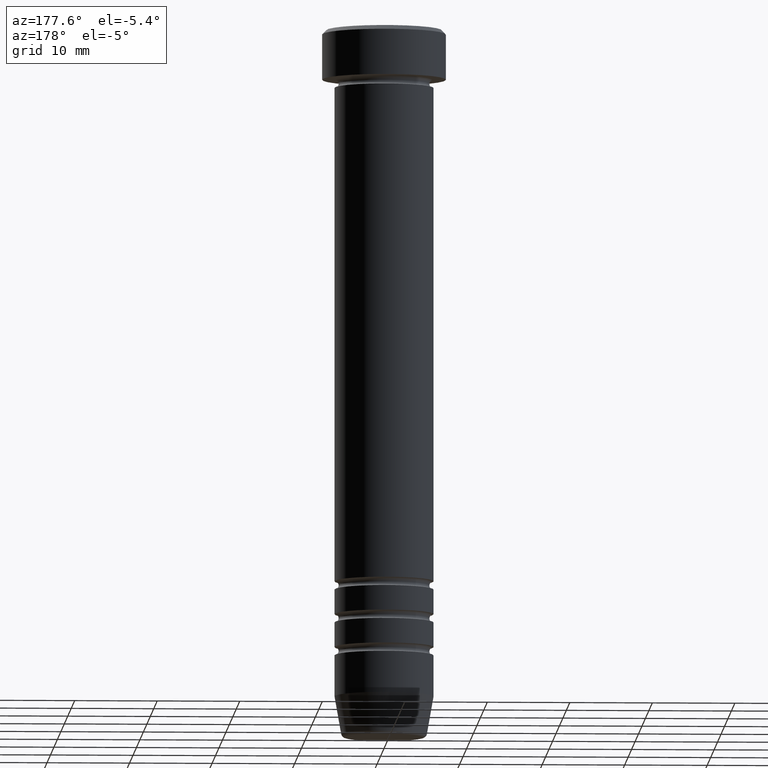
[diagram: clean part render]
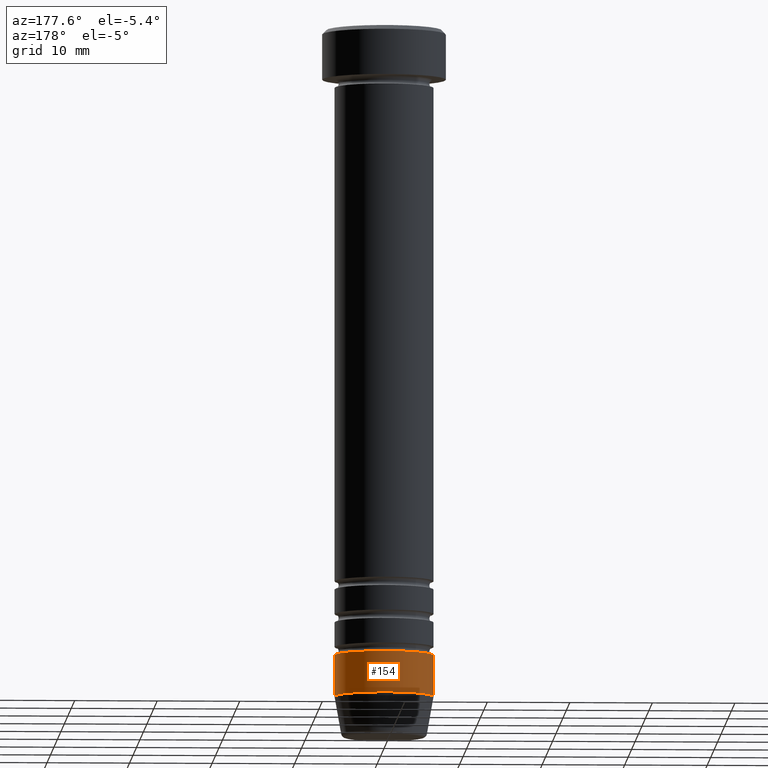
[diagram: same view with one face highlighted and labeled with its STEP entity id]
A machine part, auxiliary view. The second image highlights one B-rep face of the part: STEP entity #154.
In plain terms, the highlighted cylindrical surface (partial cylindrical patch) has radius 6 mm, axis along (-0, -0, 1).
Its self-contained STEP definition (entity closure, byte-faithful):
#4 = ORIENTED_EDGE ( 'NONE', *, *, #937, .F. ) ;
#15 = DIRECTION ( 'NONE',  ( -0.000000000000000000, -0.000000000000000000, 1.000000000000000000 ) ) ;
#48 = ORIENTED_EDGE ( 'NONE', *, *, #54, .T. ) ;
#54 = EDGE_CURVE ( 'NONE', #652, #1055, #556, .T. ) ;
#84 = DIRECTION ( 'NONE',  ( 1.000000000000000000, 0.000000000000000000, 0.000000000000000000 ) ) ;
#97 = CARTESIAN_POINT ( 'NONE',  ( -6.000000000000002665, 7.347880794884122694E-16, -76.00000000000001421 ) ) ;
#109 = VECTOR ( 'NONE', #15, 1000.000000000000000 ) ;
#132 = AXIS2_PLACEMENT_3D ( 'NONE', #373, #674, #210 ) ;
#154 = ADVANCED_FACE ( 'NONE', ( #437 ), #351, .T. ) ;
#185 = AXIS2_PLACEMENT_3D ( 'NONE', #531, #888, #84 ) ;
#186 = CARTESIAN_POINT ( 'NONE',  ( 6.000000000000002665, 0.000000000000000000, 0.000000000000000000 ) ) ;
#195 = CARTESIAN_POINT ( 'NONE',  ( 6.000000000000002665, 0.000000000000000000, -76.00000000000001421 ) ) ;
#206 = CIRCLE ( 'NONE', #185, 6.000000000000002665 ) ;
#210 = DIRECTION ( 'NONE',  ( 1.000000000000000000, 0.000000000000000000, 0.000000000000000000 ) ) ;
#252 = VERTEX_POINT ( 'NONE', #285 ) ;
#258 = VECTOR ( 'NONE', #395, 1000.000000000000000 ) ;
#285 = CARTESIAN_POINT ( 'NONE',  ( 6.000000000000002665, 0.000000000000000000, -81.00000000000000000 ) ) ;
#306 = CARTESIAN_POINT ( 'NONE',  ( -6.000000000000002665, 7.347880794884122694E-16, 0.000000000000000000 ) ) ;
#351 = CYLINDRICAL_SURFACE ( 'NONE', #967, 6.000000000000002665 ) ;
#373 = CARTESIAN_POINT ( 'NONE',  ( 0.000000000000000000, 0.000000000000000000, -81.00000000000000000 ) ) ;
#395 = DIRECTION ( 'NONE',  ( -0.000000000000000000, -0.000000000000000000, 1.000000000000000000 ) ) ;
#417 = EDGE_CURVE ( 'NONE', #252, #652, #421, .T. ) ;
#421 = CIRCLE ( 'NONE', #132, 6.000000000000002665 ) ;
#437 = FACE_OUTER_BOUND ( 'NONE', #739, .T. ) ;
#531 = CARTESIAN_POINT ( 'NONE',  ( 0.000000000000000000, 0.000000000000000000, -76.00000000000001421 ) ) ;
#556 = LINE ( 'NONE', #306, #258 ) ;
#623 = ORIENTED_EDGE ( 'NONE', *, *, #417, .T. ) ;
#652 = VERTEX_POINT ( 'NONE', #1142 ) ;
#674 = DIRECTION ( 'NONE',  ( -0.000000000000000000, -0.000000000000000000, 1.000000000000000000 ) ) ;
#721 = EDGE_CURVE ( 'NONE', #252, #899, #727, .T. ) ;
#724 = DIRECTION ( 'NONE',  ( -0.000000000000000000, -0.000000000000000000, 1.000000000000000000 ) ) ;
#727 = LINE ( 'NONE', #186, #109 ) ;
#728 = CARTESIAN_POINT ( 'NONE',  ( 0.000000000000000000, 0.000000000000000000, 0.000000000000000000 ) ) ;
#739 = EDGE_LOOP ( 'NONE', ( #623, #48, #4, #776 ) ) ;
#776 = ORIENTED_EDGE ( 'NONE', *, *, #721, .F. ) ;
#888 = DIRECTION ( 'NONE',  ( -0.000000000000000000, -0.000000000000000000, 1.000000000000000000 ) ) ;
#899 = VERTEX_POINT ( 'NONE', #195 ) ;
#937 = EDGE_CURVE ( 'NONE', #899, #1055, #206, .T. ) ;
#967 = AXIS2_PLACEMENT_3D ( 'NONE', #728, #724, #983 ) ;
#983 = DIRECTION ( 'NONE',  ( 1.000000000000000000, 0.000000000000000000, 0.000000000000000000 ) ) ;
#1055 = VERTEX_POINT ( 'NONE', #97 ) ;
#1142 = CARTESIAN_POINT ( 'NONE',  ( -6.000000000000002665, 7.347880794884122694E-16, -81.00000000000000000 ) ) ;